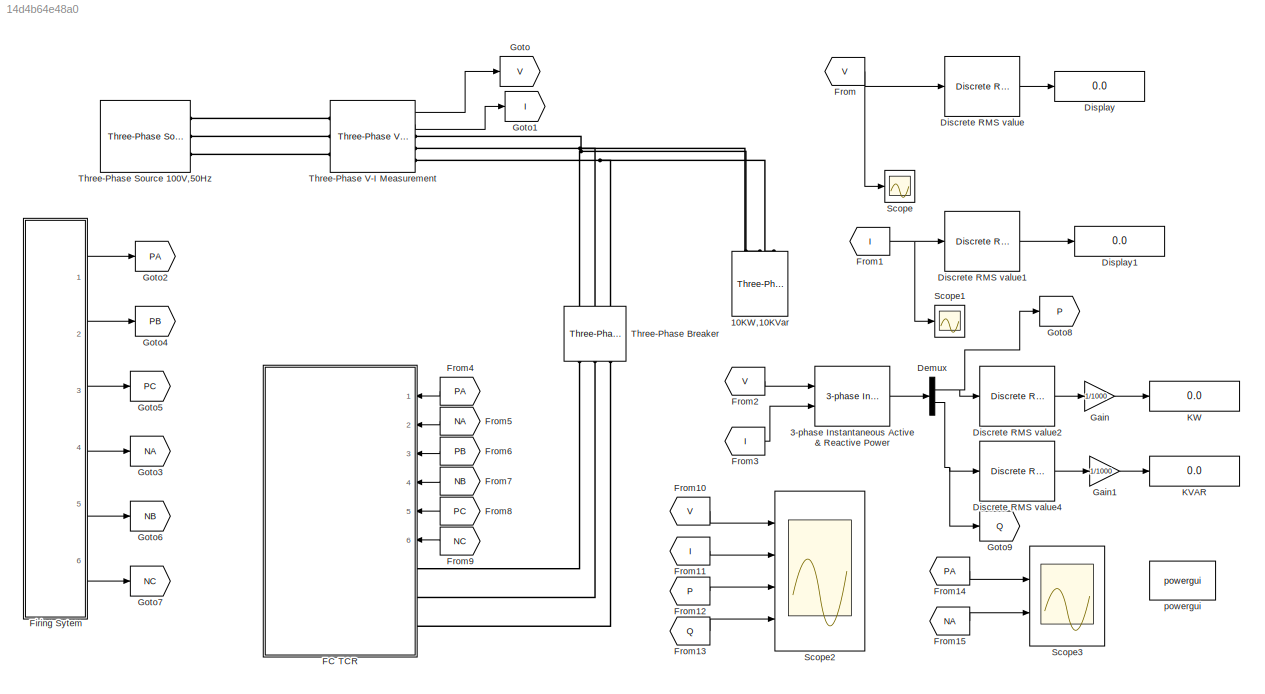
MODEL slx_14d4b64e48a0
KIND model
BLOCK [Reference] 10KW,10KVar  REF=powerlib/Elements/Three-Phase
Series RLC Load
  ActivePower = 10e3
  AttributesFormatString = \n
  CapacitivePower = 0
  Configuration = Y (grounded)
  InductivePower = 10e3
  LConnTagsString = A|B|C
  LoadType = constant Z
  Measurements = None
  NominalFrequency = 50
  NominalVoltage = 100
  Ports = [0, 0, 0, 0, 0, 3]
  SourceBlock = powerlib/Elements/Three-Phase\nSeries RLC Load
  SourceType = Three-Phase Series RLC Load
BLOCK [Reference] 3-phase Instantaneous Active & Reactive Power  REF=powerlib_extras/Measurements/3-phase 
Instantaneous 
Active & Reactive Power
  Ports = [2, 1]
  SourceBlock = powerlib_extras/Measurements/3-phase \nInstantaneous \nActive & Reactive Power
  SourceType = 3-phase instantaneous active and reactive power
BLOCK [Demux] Demux
  DisplayOption = bar
  Outputs = 2
  Ports = [1, 2]
BLOCK [Reference] Discrete RMS value  REF=powerlib_extras/Discrete
Measurements/Discrete 
RMS value
  Freq = 50
  Mag_Init = 0
  Ports = [1, 1]
  SourceBlock = powerlib_extras/Discrete\nMeasurements/Discrete \nRMS value
  SourceType = Discrete RMS value
  Ts = 50e-6
BLOCK [Reference] Discrete RMS value1  REF=powerlib_extras/Discrete
Measurements/Discrete 
RMS value
  Freq = 50
  Mag_Init = 0
  Ports = [1, 1]
  SourceBlock = powerlib_extras/Discrete\nMeasurements/Discrete \nRMS value
  SourceType = Discrete RMS value
  Ts = 50e-6
BLOCK [Reference] Discrete RMS value2  REF=powerlib_extras/Discrete
Measurements/Discrete 
RMS value
  Freq = 50
  Mag_Init = 0
  Ports = [1, 1]
  SourceBlock = powerlib_extras/Discrete\nMeasurements/Discrete \nRMS value
  SourceType = Discrete RMS value
  Ts = 50e-6
BLOCK [Reference] Discrete RMS value4  REF=powerlib_extras/Discrete
Measurements/Discrete 
RMS value
  Freq = 50
  Mag_Init = 0
  Ports = [1, 1]
  SourceBlock = powerlib_extras/Discrete\nMeasurements/Discrete \nRMS value
  SourceType = Discrete RMS value
  Ts = 50e-6
BLOCK [Display] Display
  Decimation = 1
  Lockdown = off
  Ports = [1]
BLOCK [Display] Display1
  Decimation = 1
  Lockdown = off
  Ports = [1]
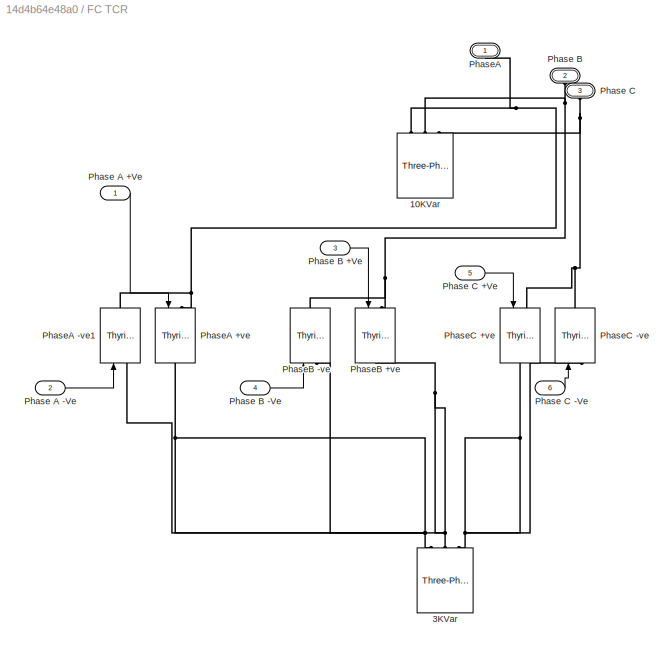
BLOCK [SubSystem] FC TCR
  FunctionWithSeparateData = off
  MaskHideContents = off
  MinAlgLoopOccurrences = off
  Opaque = off
  Ports = [6, 0, 0, 0, 0, 3]
  PropExecContextOutsideSubsystem = off
  RTWSystemCode = Auto
  RequestExecContextInheritance = off
BLOCK [Reference] FC TCR/10KVar  REF=powerlib/Elements/Three-Phase
Series RLC Load
  ActivePower = 1e-6
  AttributesFormatString = \n
  CapacitivePower = 10e3
  Configuration = Y (grounded)
  InductivePower = 0
  LConnTagsString = A|B|C
  LoadType = constant Z
  Measurements = None
  NominalFrequency = 50
  NominalVoltage = 100
  Ports = [0, 0, 0, 0, 0, 3]
  SourceBlock = powerlib/Elements/Three-Phase\nSeries RLC Load
  SourceType = Three-Phase Series RLC Load
BLOCK [Reference] FC TCR/3KVar  REF=powerlib/Elements/Three-Phase
Series RLC Load
  ActivePower = 0
  AttributesFormatString = \n
  CapacitivePower = 0
  Configuration = Y (grounded)
  InductivePower = 3e3
  LConnTagsString = A|B|C
  LoadType = constant Z
  Measurements = None
  NominalFrequency = 50
  NominalVoltage = 100
  Ports = [0, 0, 0, 0, 0, 3]
  SourceBlock = powerlib/Elements/Three-Phase\nSeries RLC Load
  SourceType = Three-Phase Series RLC Load
BLOCK [Inport] FC TCR/Phase A +Ve
  IconDisplay = Port number
BLOCK [Inport] FC TCR/Phase A -Ve
  IconDisplay = Port number
  Port = 2
BLOCK [PMIOPort] FC TCR/Phase B
  Port = 2
  Side = Left
BLOCK [Inport] FC TCR/Phase B +Ve
  IconDisplay = Port number
  Port = 3
BLOCK [Inport] FC TCR/Phase B -Ve
  IconDisplay = Port number
  Port = 4
BLOCK [PMIOPort] FC TCR/Phase C
  Port = 3
  Side = Left
BLOCK [Inport] FC TCR/Phase C +Ve
  IconDisplay = Port number
  Port = 5
BLOCK [Inport] FC TCR/Phase C -Ve
  IconDisplay = Port number
  Port = 6
BLOCK [PMIOPort] FC TCR/PhaseA
  Port = 1
  Side = Left
BLOCK [Reference] FC TCR/PhaseA +ve  REF=powerlib/Power
Electronics/Thyristor
  Cs = 250e-9
  IC = 0
  Lon = 0
  Measurements = off
  Ports = [1, 0, 0, 0, 0, 1, 1]
  Ron = 0.001
  Rs = 500
  SourceBlock = powerlib/Power\nElectronics/Thyristor
  SourceType = Thyristor
  Vf = 0.8
BLOCK [Reference] FC TCR/PhaseA -ve1  REF=powerlib/Power
Electronics/Thyristor
  Cs = 250e-9
  IC = 0
  Lon = 0
  Measurements = off
  Ports = [1, 0, 0, 0, 0, 1, 1]
  Ron = 0.001
  Rs = 500
  SourceBlock = powerlib/Power\nElectronics/Thyristor
  SourceType = Thyristor
  Vf = 0.8
BLOCK [Reference] FC TCR/PhaseB +ve  REF=powerlib/Power
Electronics/Thyristor
  Cs = 250e-9
  IC = 0
  Lon = 0
  Measurements = off
  Ports = [1, 0, 0, 0, 0, 1, 1]
  Ron = 0.001
  Rs = 500
  SourceBlock = powerlib/Power\nElectronics/Thyristor
  SourceType = Thyristor
  Vf = 0.8
BLOCK [Reference] FC TCR/PhaseB -ve  REF=powerlib/Power
Electronics/Thyristor
  Cs = 250e-9
  IC = 0
  Lon = 0
  Measurements = off
  Ports = [1, 0, 0, 0, 0, 1, 1]
  Ron = 0.001
  Rs = 500
  SourceBlock = powerlib/Power\nElectronics/Thyristor
  SourceType = Thyristor
  Vf = 0.8
BLOCK [Reference] FC TCR/PhaseC +ve  REF=powerlib/Power
Electronics/Thyristor
  Cs = 250e-9
  IC = 0
  Lon = 0
  Measurements = off
  Ports = [1, 0, 0, 0, 0, 1, 1]
  Ron = 0.001
  Rs = 500
  SourceBlock = powerlib/Power\nElectronics/Thyristor
  SourceType = Thyristor
  Vf = 0.8
BLOCK [Reference] FC TCR/PhaseC -ve  REF=powerlib/Power
Electronics/Thyristor
  Cs = 250e-9
  IC = 0
  Lon = 0
  Measurements = off
  Ports = [1, 0, 0, 0, 0, 1, 1]
  Ron = 0.001
  Rs = 500
  SourceBlock = powerlib/Power\nElectronics/Thyristor
  SourceType = Thyristor
  Vf = 0.8
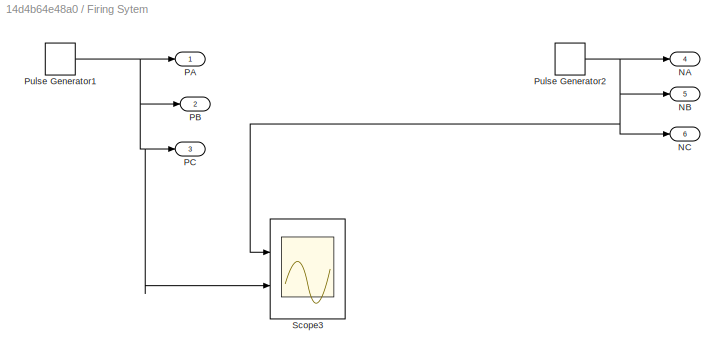
BLOCK [SubSystem] Firing Sytem
  FunctionWithSeparateData = off
  MaskHideContents = off
  MinAlgLoopOccurrences = off
  Opaque = off
  Ports = [0, 6]
  PropExecContextOutsideSubsystem = off
  RTWSystemCode = Auto
  RequestExecContextInheritance = off
BLOCK [Outport] Firing Sytem/NA
  IconDisplay = Port number
  Port = 4
BLOCK [Outport] Firing Sytem/NB
  IconDisplay = Port number
  Port = 5
BLOCK [Outport] Firing Sytem/NC
  IconDisplay = Port number
  Port = 6
BLOCK [Outport] Firing Sytem/PA
  IconDisplay = Port number
BLOCK [Outport] Firing Sytem/PB
  IconDisplay = Port number
  Port = 2
BLOCK [Outport] Firing Sytem/PC
  IconDisplay = Port number
  Port = 3
BLOCK [DiscretePulseGenerator] Firing Sytem/Pulse Generator1
  Amplitude = 10
  Period = 0.02
  PhaseDelay = 2.222e-3
  Ports = [0, 1]
  PulseType = Time based
  PulseWidth = 20
  VectorParams1D = off
BLOCK [DiscretePulseGenerator] Firing Sytem/Pulse Generator2
  Amplitude = 10
  Period = 0.02
  PhaseDelay = 2.2222e-3
  Ports = [0, 1]
  PulseType = Time based
  PulseWidth = 20
  VectorParams1D = off
BLOCK [Scope] Firing Sytem/Scope3
  DataFormat = StructureWithTime
  Floating = off
  LimitDataPoints = off
  NumInputPorts = 2
  Ports = [2]
  SampleTime = 0
  SaveName = main2
  ShowLegends = off
  TimeRange = 0.1
  YMax = 1~10
  YMin = 0~0
  ZoomMode = yonly
BLOCK [From] From
  GotoTag = V
BLOCK [From] From1
  GotoTag = I
BLOCK [From] From10
  GotoTag = V
BLOCK [From] From11
  GotoTag = I
BLOCK [From] From12
  GotoTag = P
BLOCK [From] From13
  GotoTag = Q
BLOCK [From] From14
  GotoTag = PA
BLOCK [From] From15
  GotoTag = NA
BLOCK [From] From2
  GotoTag = V
BLOCK [From] From3
  GotoTag = I
BLOCK [From] From4
  GotoTag = PA
BLOCK [From] From5
  GotoTag = NA
BLOCK [From] From6
  GotoTag = PB
BLOCK [From] From7
  GotoTag = NB
BLOCK [From] From8
  GotoTag = PC
BLOCK [From] From9
  GotoTag = NC
BLOCK [Gain] Gain
  Gain = 1/1000
  OutDataTypeStr = Inherit: Inherit via internal rule
  ParamDataTypeStr = Inherit: Inherit via internal rule
  SaturateOnIntegerOverflow = off
BLOCK [Gain] Gain1
  Gain = 1/1000
  OutDataTypeStr = Inherit: Inherit via internal rule
  ParamDataTypeStr = Inherit: Inherit via internal rule
  SaturateOnIntegerOverflow = off
BLOCK [Goto] Goto
  GotoTag = V
BLOCK [Goto] Goto1
  GotoTag = I
BLOCK [Goto] Goto2
  GotoTag = PA
BLOCK [Goto] Goto3
  GotoTag = NA
BLOCK [Goto] Goto4
  GotoTag = PB
BLOCK [Goto] Goto5
  GotoTag = PC
BLOCK [Goto] Goto6
  GotoTag = NB
BLOCK [Goto] Goto7
  GotoTag = NC
BLOCK [Goto] Goto8
  GotoTag = P
BLOCK [Goto] Goto9
  GotoTag = Q
BLOCK [Display] KVAR
  Decimation = 1
  Lockdown = off
  Ports = [1]
BLOCK [Display] KW
  Decimation = 1
  Lockdown = off
  Ports = [1]
BLOCK [Scope] Scope
  DataFormat = StructureWithTime
  Floating = off
  NumInputPorts = 1
  Ports = [1]
  SampleTime = 0
  SaveToWorkspace = on
  ShowLegends = off
  YMax = 90
  YMin = -90
BLOCK [Scope] Scope1
  DataFormat = StructureWithTime
  Floating = off
  NumInputPorts = 1
  Ports = [1]
  SampleTime = 0
  SaveName = ScopeData1
  SaveToWorkspace = on
  ShowLegends = off
BLOCK [Scope] Scope2
  DataFormat = StructureWithTime
  Floating = off
  NumInputPorts = 4
  Ports = [4]
  SampleTime = 0
  SaveName = main
  SaveToWorkspace = on
  ShowLegends = off
  TimeRange = 2.828919309205702e-005
  YMax = 100~200~20000~15000
  YMin = -100~-100~0~-5000
BLOCK [Scope] Scope3
  DataFormat = StructureWithTime
  Floating = off
  NumInputPorts = 2
  Ports = [2]
  SampleInput = on
  SampleTime = 0
  SaveName = main1
  SaveToWorkspace = on
  ShowLegends = off
  TimeRange = 5
  YMax = 20~20
  YMin = 0~0
BLOCK [Reference] Three-Phase Breaker  REF=powerlib/Elements/Three-Phase Breaker
  BreakerResistance = 0.001
  External = off
  InitialState = closed
  Measurements = None
  Ports = [0, 0, 0, 0, 0, 3, 3]
  SnubberCapacitance = inf
  SnubberResistance = 1e6
  SourceBlock = powerlib/Elements/Three-Phase Breaker
  SourceType = Three-Phase Breaker
  SwitchA = on
  SwitchB = on
  SwitchC = on
  SwitchTimes = [3/50  10/50]
BLOCK [Reference] Three-Phase Source 100V,50Hz  REF=powerlib/Electrical
Sources/Three-Phase Source
  BaseVoltage = 25e3
  BusType = swing
  Frequency = 50
  Inductance = 0
  InternalConnection = Yn
  PhaseAngle = 0
  Ports = [0, 0, 0, 0, 0, 1, 3]
  Pref = 0
  Qmax = inf
  Qmin = -inf
  Qref = 0
  Resistance = 0
  ShortCircuitLevel = 100e6
  SourceBlock = powerlib/Electrical\nSources/Three-Phase Source
  SourceType = Three-Phase Source
  SpecifyImpedance = off
  Voltage = 100
  XRratio = 7
BLOCK [Reference] Three-Phase V-I Measurement  REF=powerlib/Measurements/Three-Phase
V-I Measurement
  CurrentMeasurement = yes
  Ipu = off
  LabelI = Iabc
  LabelV = Vabc
  OutputType = Complex
  PSBequivalent = 0
  Pbase = 100e6
  PhasorSimulation = off
  Ports = [0, 2, 0, 0, 0, 3, 3]
  SetLabelI = off
  SetLabelV = off
  SourceBlock = powerlib/Measurements/Three-Phase\nV-I Measurement
  SourceType = Three-Phase VI Measurement
  Vbase = 500e3
  VoltageMeasurement = phase-to-ground
  Vpu = off
  VpuLL = off
BLOCK [Reference] powergui  REF=powerlib/powergui
  DisableRonSwitches = off
  DisableSnubberDevices = off
  DisableVfSwitches = off
  DisplayEquations = off
  DisplayStyle = 1
  EnableUseOfTLC = off
  ErrMax = 1e-4
  Frange = [0:2:500]
  FreqAxis = off
  FunctionMessages = off
  HookPort = off
  Interpol = off
  Iterations = 50
  MaxFrequency = 1000
  Pbase = 100e6
  Ports = []
  Priority = 1
  ResistiveCurrentMeasurement = off
  RestoreLinks = warning
  RmsSteady = 1
  SPID = off
  SampleTime = 50e-6
  ShowGrid = off
  SolverType = Tustin
  SourceBlock = powerlib/powergui
  SourceType = PSB option menu block
  StartTime = 4.8
  SwTol = 0
  Ts = 0
  UnitsV = kV
  UnitsW = MW
  UserDataPersistent = on
  Xlog = on
  Ylog = off
  ZoomFFT = off
  cycles = 2
  display = off
  echomessages = off
  frequency = 60
  frequencyindice = 50
  frequencyindicesteady = 1
  fundamental = 50
  methode = off
  save = off
  structure = main
  variable = ZData
  x0status = blocks
LINE 3-phase Instantaneous Active & Reactive Power:1 -> Demux:1
NET Demux:1 -> Discrete RMS value2:1, Goto8:1
NET Demux:2 -> Discrete RMS value4:1, Goto9:1
LINE Discrete RMS value1:1 -> Display1:1
LINE Discrete RMS value2:1 -> Gain:1
LINE Discrete RMS value4:1 -> Gain1:1
LINE Discrete RMS value:1 -> Display:1
LINE FC TCR/Phase A +Ve:1 -> FC TCR/PhaseA +ve:1
LINE FC TCR/Phase A -Ve:1 -> FC TCR/PhaseA -ve1:1
LINE FC TCR/Phase B +Ve:1 -> FC TCR/PhaseB +ve:1
LINE FC TCR/Phase B -Ve:1 -> FC TCR/PhaseB -ve:1
LINE FC TCR/Phase C +Ve:1 -> FC TCR/PhaseC +ve:1
LINE FC TCR/Phase C -Ve:1 -> FC TCR/PhaseC -ve:1
NET Firing Sytem/Pulse Generator1:1 -> Firing Sytem/PA:1, Firing Sytem/PB:1, Firing Sytem/PC:1, Firing Sytem/Scope3:2
NET Firing Sytem/Pulse Generator2:1 -> Firing Sytem/NA:1, Firing Sytem/NB:1, Firing Sytem/NC:1, Firing Sytem/Scope3:1
LINE Firing Sytem:1 -> Goto2:1
LINE Firing Sytem:2 -> Goto4:1
LINE Firing Sytem:3 -> Goto5:1
LINE Firing Sytem:4 -> Goto3:1
LINE Firing Sytem:5 -> Goto6:1
LINE Firing Sytem:6 -> Goto7:1
LINE From10:1 -> Scope2:1
LINE From11:1 -> Scope2:2
LINE From12:1 -> Scope2:3
LINE From13:1 -> Scope2:4
LINE From14:1 -> Scope3:1
LINE From15:1 -> Scope3:2
NET From1:1 -> Discrete RMS value1:1, Scope1:1
LINE From2:1 -> 3-phase Instantaneous Active & Reactive Power:1
LINE From3:1 -> 3-phase Instantaneous Active & Reactive Power:2
LINE From4:1 -> FC TCR:1
LINE From5:1 -> FC TCR:2
LINE From6:1 -> FC TCR:3
LINE From7:1 -> FC TCR:4
LINE From8:1 -> FC TCR:5
LINE From9:1 -> FC TCR:6
NET From:1 -> Discrete RMS value:1, Scope:1
LINE Gain1:1 -> KVAR:1
LINE Gain:1 -> KW:1
LINE Three-Phase V-I Measurement:1 -> Goto:1
LINE Three-Phase V-I Measurement:2 -> Goto1:1
PNET net1: 10KW,10KVar:LConn1 -- Three-Phase Breaker:RConn1 -- Three-Phase V-I Measurement:RConn1
PNET net2: 10KW,10KVar:LConn2 -- Three-Phase Breaker:RConn2 -- Three-Phase V-I Measurement:RConn2
PNET net3: 10KW,10KVar:LConn3 -- Three-Phase Breaker:RConn3 -- Three-Phase V-I Measurement:RConn3
PNET net4: FC TCR/10KVar:LConn1 -- FC TCR/PhaseA +ve:LConn1 -- FC TCR/PhaseA -ve1:RConn1 -- FC TCR/PhaseA:RConn1
PNET net5: FC TCR/10KVar:LConn2 -- FC TCR/Phase B:RConn1 -- FC TCR/PhaseB +ve:LConn1 -- FC TCR/PhaseB -ve:RConn1
PNET net6: FC TCR/10KVar:LConn3 -- FC TCR/Phase C:RConn1 -- FC TCR/PhaseC +ve:LConn1 -- FC TCR/PhaseC -ve:RConn1
PNET net7: FC TCR/3KVar:LConn1 -- FC TCR/PhaseA +ve:RConn1 -- FC TCR/PhaseA -ve1:LConn1
PNET net8: FC TCR/3KVar:LConn2 -- FC TCR/PhaseB +ve:RConn1 -- FC TCR/PhaseB -ve:LConn1
PNET net9: FC TCR/3KVar:LConn3 -- FC TCR/PhaseC +ve:RConn1 -- FC TCR/PhaseC -ve:LConn1
PLINE FC TCR:LConn1 -- Three-Phase Breaker:LConn1
PLINE FC TCR:LConn2 -- Three-Phase Breaker:LConn2
PLINE FC TCR:LConn3 -- Three-Phase Breaker:LConn3
PLINE Three-Phase Source 100V,50Hz:RConn1 -- Three-Phase V-I Measurement:LConn1
PLINE Three-Phase Source 100V,50Hz:RConn2 -- Three-Phase V-I Measurement:LConn2
PLINE Three-Phase Source 100V,50Hz:RConn3 -- Three-Phase V-I Measurement:LConn3
note: NET lines group one-source signal fan-out (src -> all destinations, sorted); 1:1 wires keep LINE; PNET lines group multi-terminal physical nets as a canonical sorted terminal list (undirected conserving connections); 2-terminal nets keep the pairwise PLINE form
